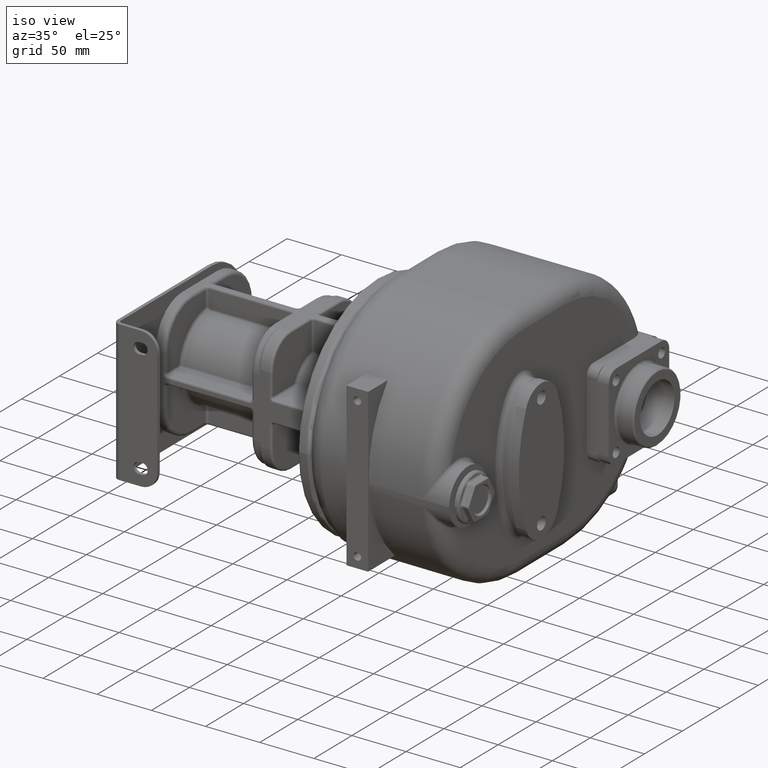
[diagram: clean part render]
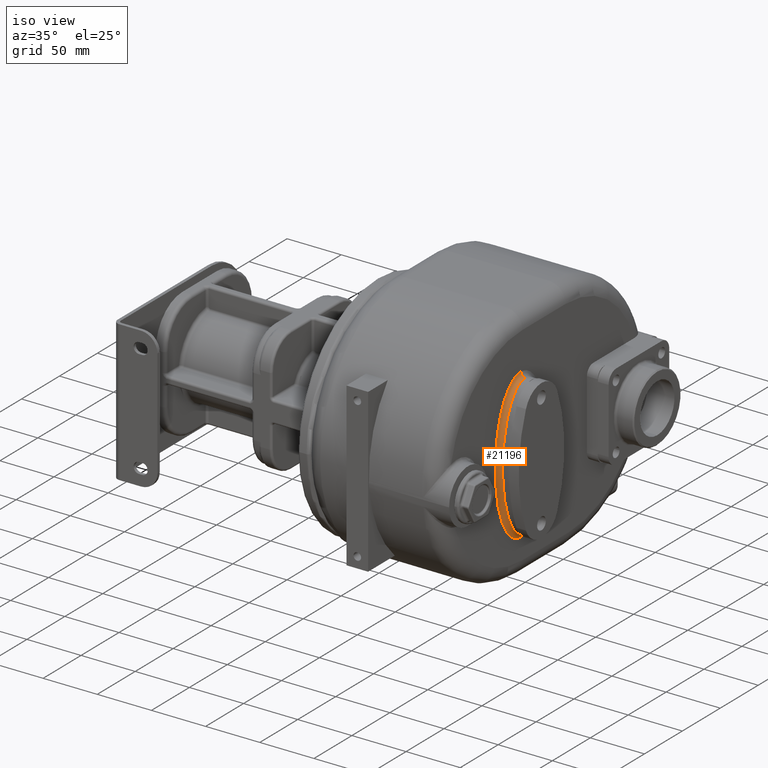
[diagram: same view with one face highlighted and labeled with its STEP entity id]
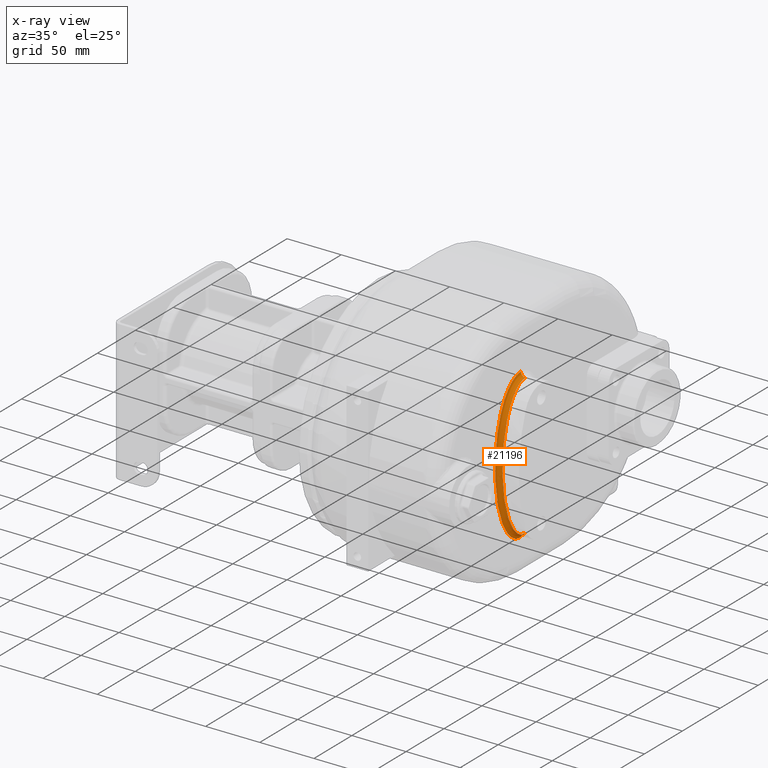
[diagram: x-ray of the same camera — body ghosted, the highlighted face saturated]
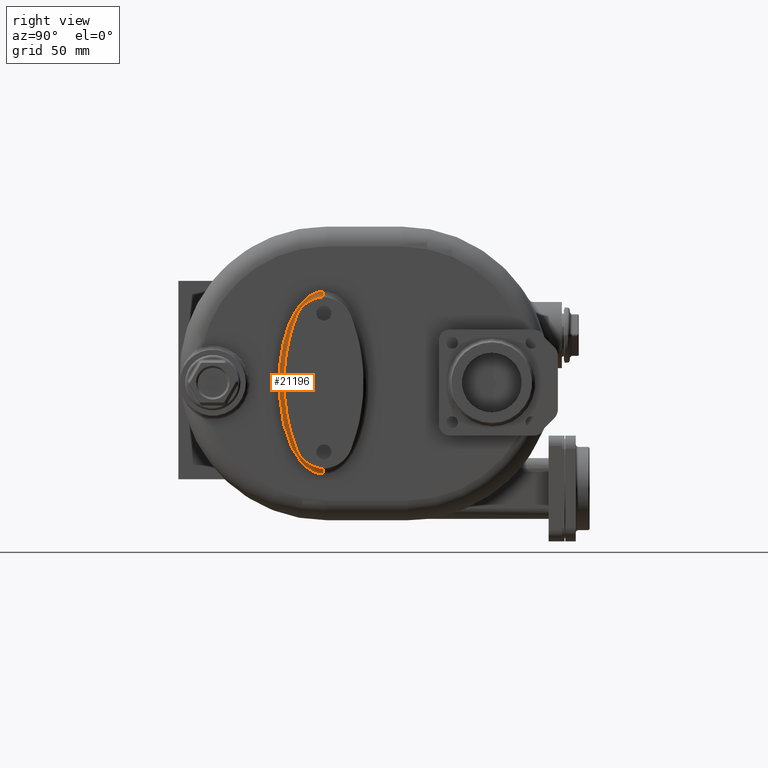
[diagram: same view with one face highlighted and labeled with its STEP entity id]
A machine part, iso view. The second image highlights one B-rep face of the part: STEP entity #21196.
The next image is the same camera in x-ray: the body ghosted, the highlighted face saturated — about 0% of this face is hidden behind the body in this view.
A second angle (right view) of the same face is appended — the face is thin or edge-on in the first view.
In plain terms, the highlighted face is a freeform B-spline surface patch.
Its self-contained STEP definition (entity closure, byte-faithful):
#1535=CARTESIAN_POINT('',(7.400000634498E1,1.099999999998E2,-7.599999999998E1));
#1645=CARTESIAN_POINT('',(7.400000634498E1,1.100000000002E2,6.199999999998E1));
#1647=CARTESIAN_POINT('',(7.400000634498E1,1.100000000002E2,6.199999999998E1));
#1648=CARTESIAN_POINT('',(7.400001016623E1,1.097864255186E2,6.199999317442E1));
#1649=CARTESIAN_POINT('',(7.399999528184E1,1.093582951461E2,6.199229907980E1));
#1650=CARTESIAN_POINT('',(7.400000126423E1,1.087129691518E2,6.195749155583E1));
#1651=CARTESIAN_POINT('',(7.399999966125E1,1.080650713003E2,6.189893652659E1));
#1652=CARTESIAN_POINT('',(7.400000009077E1,1.074149422378E2,6.181637691769E1));
#1653=CARTESIAN_POINT('',(7.399999997568E1,1.067629530415E2,6.170954380167E1));
#1654=CARTESIAN_POINT('',(7.400000000652E1,1.061096549127E2,6.157808600898E1));
#1655=CARTESIAN_POINT('',(7.399999999825E1,1.054550537673E2,6.142173653598E1));
#1656=CARTESIAN_POINT('',(7.400000000047E1,1.047982427450E2,6.123985690766E1));
#1657=CARTESIAN_POINT('',(7.399999999987E1,1.041385800657E2,6.103159298640E1));
#1658=CARTESIAN_POINT('',(7.400000000003E1,1.034755941347E2,6.079616920723E1));
#1659=CARTESIAN_POINT('',(7.399999999999E1,1.028091774695E2,6.053274117083E1));
#1660=CARTESIAN_POINT('',(7.4E1,1.021392803762E2,6.024040083799E1));
#1661=CARTESIAN_POINT('',(7.4E1,1.014653446813E2,5.991799145068E1));
#1662=CARTESIAN_POINT('',(7.4E1,1.007870304926E2,5.956421515867E1));
#1663=CARTESIAN_POINT('',(7.4E1,1.001039183801E2,5.917765712304E1));
#1664=CARTESIAN_POINT('',(7.4E1,9.941573877734E1,5.875679610768E1));
#1665=CARTESIAN_POINT('',(7.4E1,9.872230784045E1,5.830000907389E1));
#1666=CARTESIAN_POINT('',(7.4E1,9.802315782449E1,5.780534040832E1));
#1667=CARTESIAN_POINT('',(7.4E1,9.731816779279E1,5.727087796199E1));
#1668=CARTESIAN_POINT('',(7.4E1,9.660703207734E1,5.669433660117E1));
#1669=CARTESIAN_POINT('',(7.4E1,9.588957941500E1,5.607338677993E1));
#1670=CARTESIAN_POINT('',(7.4E1,9.516580997849E1,5.540558207864E1));
#1671=CARTESIAN_POINT('',(7.4E1,9.443551483985E1,5.468799005822E1));
#1672=CARTESIAN_POINT('',(7.4E1,9.369882861536E1,5.391792389553E1));
#1673=CARTESIAN_POINT('',(7.4E1,9.295583217136E1,5.309210027617E1));
#1674=CARTESIAN_POINT('',(7.4E1,9.220667555239E1,5.220720784048E1));
#1675=CARTESIAN_POINT('',(7.4E1,9.145179272807E1,5.125995393841E1));
#1676=CARTESIAN_POINT('',(7.4E1,9.069162995005E1,5.024646069120E1));
#1677=CARTESIAN_POINT('',(7.4E1,8.992683460381E1,4.916321637141E1));
#1678=CARTESIAN_POINT('',(7.4E1,8.915833834719E1,4.800622592836E1));
#1679=CARTESIAN_POINT('',(7.4E1,8.838715930190E1,4.677174800671E1));
#1680=CARTESIAN_POINT('',(7.4E1,8.761467028553E1,4.545578958768E1));
#1681=CARTESIAN_POINT('',(7.4E1,8.684233478774E1,4.405453730645E1));
#1682=CARTESIAN_POINT('',(7.4E1,8.607203293465E1,4.256417048403E1));
#1683=CARTESIAN_POINT('',(7.4E1,8.530579810112E1,4.098113656314E1));
#1684=CARTESIAN_POINT('',(7.4E1,8.454602327321E1,3.930204993034E1));
#1685=CARTESIAN_POINT('',(7.4E1,8.379538876064E1,3.752392194267E1));
#1686=CARTESIAN_POINT('',(7.4E1,8.305679161787E1,3.564416015036E1));
#1687=CARTESIAN_POINT('',(7.4E1,8.233357881726E1,3.366079853117E1));
#1688=CARTESIAN_POINT('',(7.4E1,8.162917730751E1,3.157246477210E1));
#1689=CARTESIAN_POINT('',(7.4E1,8.094745636475E1,2.937866750332E1));
#1690=CARTESIAN_POINT('',(7.4E1,8.029237572995E1,2.707977775896E1));
#1691=CARTESIAN_POINT('',(7.4E1,7.966808955932E1,2.467711111202E1));
#1692=CARTESIAN_POINT('',(7.4E1,7.907895352958E1,2.217326376818E1));
#1693=CARTESIAN_POINT('',(7.4E1,7.852917683277E1,1.957168466819E1));
#1694=CARTESIAN_POINT('',(7.4E1,7.802323708855E1,1.687757250381E1));
#1695=CARTESIAN_POINT('',(7.4E1,7.756514159790E1,1.409681585771E1));
#1696=CARTESIAN_POINT('',(7.4E1,7.715910088021E1,1.123725186405E1));
#1697=CARTESIAN_POINT('',(7.4E1,7.680858187887E1,8.307149175230E0));
#1698=CARTESIAN_POINT('',(7.4E1,7.651713210934E1,5.316734765686E0));
#1699=CARTESIAN_POINT('',(7.4E1,7.628736253242E1,2.276413983332E0));
#1700=CARTESIAN_POINT('',(7.4E1,7.612176113114E1,-8.018120072720E-1));
#1701=CARTESIAN_POINT('',(7.4E1,7.602187953829E1,-3.905760503602E0));
#1702=CARTESIAN_POINT('',(7.4E1,7.598878608137E1,-7.022581563332E0));
#1703=CARTESIAN_POINT('',(7.4E1,7.602287506757E1,-1.013907949007E1));
#1704=CARTESIAN_POINT('',(7.4E1,7.612362006246E1,-1.324226962183E1));
#1705=CARTESIAN_POINT('',(7.4E1,7.629020920675E1,-1.631942609593E1));
#1706=CARTESIAN_POINT('',(7.4E1,7.652065928252E1,-1.935793488995E1));
#1707=CARTESIAN_POINT('',(7.4E1,7.681291737587E1,-2.234663338004E1));
#1708=CARTESIAN_POINT('',(7.4E1,7.716393219935E1,-2.527430390097E1));
#1709=CARTESIAN_POINT('',(7.4E1,7.757051343036E1,-2.813160437940E1));
#1710=CARTESIAN_POINT('',(7.4E1,7.802886968283E1,-3.090954895437E1));
#1711=CARTESIAN_POINT('',(7.4E1,7.853506330688E1,-3.360101600633E1));
#1712=CARTESIAN_POINT('',(7.4E1,7.908483994672E1,-3.619962175430E1));
#1713=CARTESIAN_POINT('',(7.4E1,7.967397117081E1,-3.870074139662E1));
#1714=CARTESIAN_POINT('',(7.4E1,8.029802940824E1,-4.110051781887E1));
#1715=CARTESIAN_POINT('',(7.4E1,8.095286810144E1,-4.339674319626E1));
#1716=CARTESIAN_POINT('',(7.4E1,8.163418687627E1,-4.558789397878E1));
#1717=CARTESIAN_POINT('',(7.4E1,8.233816063839E1,-4.767379906058E1));
#1718=CARTESIAN_POINT('',(7.4E1,8.306089001904E1,-4.965493742292E1));
#1719=CARTESIAN_POINT('',(7.4E1,8.379897146508E1,-5.153269212327E1));
#1720=CARTESIAN_POINT('',(7.4E1,8.454910772015E1,-5.330906005177E1));
#1721=CARTESIAN_POINT('',(7.4E1,8.530834609415E1,-5.498656224660E1));
#1722=CARTESIAN_POINT('',(7.4E1,8.607405989573E1,-5.656819146798E1));
#1723=CARTESIAN_POINT('',(7.4E1,8.684381509967E1,-5.805728549558E1));
#1724=CARTESIAN_POINT('',(7.4E1,8.761558630909E1,-5.945738668377E1));
#1725=CARTESIAN_POINT('',(7.4E1,8.838749600166E1,-6.077227229393E1));
#1726=CARTESIAN_POINT('',(7.4E1,8.915806630326E1,-6.200579837115E1));
#1727=CARTESIAN_POINT('',(7.4E1,8.992592366835E1,-6.316185351256E1));
#1728=CARTESIAN_POINT('',(7.4E1,9.069006444616E1,-6.424430181801E1));
#1729=CARTESIAN_POINT('',(7.4E1,9.144953310861E1,-6.525701375160E1));
#1730=CARTESIAN_POINT('',(7.4E1,9.220378315875E1,-6.620365574523E1));
#1731=CARTESIAN_POINT('',(7.4E1,9.295228469129E1,-6.708803891076E1));
#1732=CARTESIAN_POINT('',(7.4E1,9.369468305279E1,-6.791342986184E1));
#1733=CARTESIAN_POINT('',(7.4E1,9.443093045238E1,-6.868333782490E1));
#1734=CARTESIAN_POINT('',(7.4E1,9.516078269635E1,-6.940078986789E1));
#1735=CARTESIAN_POINT('',(7.4E1,9.588427073376E1,-7.006862851303E1));
#1736=CARTESIAN_POINT('',(7.4E1,9.660150785275E1,-7.068970867633E1));
#1737=CARTESIAN_POINT('',(7.4E1,9.731247164803E1,-7.126640586485E1));
#1738=CARTESIAN_POINT('',(7.4E1,9.801746907277E1,-7.180117041657E1));
#1739=CARTESIAN_POINT('',(7.4E1,9.871659800113E1,-7.229611144136E1));
#1740=CARTESIAN_POINT('',(7.4E1,9.941010937740E1,-7.275321981832E1));
#1741=CARTESIAN_POINT('',(7.4E1,1.000983233653E2,-7.317436176240E1));
#1742=CARTESIAN_POINT('',(7.4E1,1.007814577828E2,-7.356119302175E1));
#1743=CARTESIAN_POINT('',(7.4E1,1.014599406067E2,-7.391528472895E1));
#1744=CARTESIAN_POINT('',(7.4E1,1.021339724198E2,-7.423798058331E1));
#1745=CARTESIAN_POINT('',(7.399999999999E1,1.028039396588E2,-7.453055630618E1));
#1746=CARTESIAN_POINT('',(7.400000000003E1,1.034702178295E2,-7.479415406132E1));
#1747=CARTESIAN_POINT('',(7.399999999990E1,1.041333130042E2,-7.502984478630E1));
#1748=CARTESIAN_POINT('',(7.400000000039E1,1.047934141829E2,-7.523840842812E1));
#1749=CARTESIAN_POINT('',(7.399999999854E1,1.054505451671E2,-7.542060472162E1));
#1750=CARTESIAN_POINT('',(7.400000000544E1,1.061051909928E2,-7.557710486507E1));
#1751=CARTESIAN_POINT('',(7.399999997968E1,1.067581404141E2,-7.570864197913E1));
#1752=CARTESIAN_POINT('',(7.400000007583E1,1.074102236830E2,-7.581572289521E1));
#1753=CARTESIAN_POINT('',(7.399999971702E1,1.080609829395E2,-7.589849447894E1));
#1754=CARTESIAN_POINT('',(7.400000105611E1,1.087099044876E2,-7.595728424412E1));
#1755=CARTESIAN_POINT('',(7.399999605855E1,1.093566074625E2,-7.599227653355E1));
#1756=CARTESIAN_POINT('',(7.400000849264E1,1.097858304664E2,-7.599999625812E1));
#1757=CARTESIAN_POINT('',(7.400000634498E1,1.099999999998E2,-7.599999999998E1));
#5335=CARTESIAN_POINT('',(7.8E1,1.099999997951E2,-7.599999017691E1));
#5336=DIRECTION('',(0.E0,1.E0,-9.184269956634E-8));
#5337=DIRECTION('',(-9.999999999970E-1,-2.238212250549E-13,-2.455771341421E-6));
#5338=AXIS2_PLACEMENT_3D('',#5335,#5336,#5337);
#5340=CARTESIAN_POINT('',(7.8E1,1.100000002049E2,6.199999017691E1));
#5341=DIRECTION('',(0.E0,-1.E0,9.184269966478E-8));
#5342=DIRECTION('',(-9.999999999970E-1,2.238212250549E-13,2.455771336092E-6));
#5343=AXIS2_PLACEMENT_3D('',#5340,#5341,#5342);
#5360=CARTESIAN_POINT('',(7.8E1,1.100000000001E2,5.799999736271E1));
#5361=CARTESIAN_POINT('',(7.8E1,1.080365045916E2,5.799999736271E1));
#5362=CARTESIAN_POINT('',(7.8E1,1.041095719083E2,5.716199481289E1));
#5363=CARTESIAN_POINT('',(7.8E1,9.844548347074E1,5.343928146810E1));
#5364=CARTESIAN_POINT('',(7.8E1,9.322547638304E1,4.739389699413E1));
#5365=CARTESIAN_POINT('',(7.8E1,8.864996905356E1,3.925827935338E1));
#5366=CARTESIAN_POINT('',(7.8E1,8.489542678913E1,2.934463025511E1));
#5367=CARTESIAN_POINT('',(7.8E1,8.117324917091E1,1.426591058671E1));
#5368=CARTESIAN_POINT('',(7.8E1,7.921783388606E1,-7.E0));
#5369=CARTESIAN_POINT('',(7.8E1,8.117324917091E1,-2.826591058671E1));
#5370=CARTESIAN_POINT('',(7.8E1,8.489542678913E1,-4.334463025511E1));
#5371=CARTESIAN_POINT('',(7.8E1,8.864996905356E1,-5.325827935338E1));
#5372=CARTESIAN_POINT('',(7.8E1,9.322547638305E1,-6.139389699413E1));
#5373=CARTESIAN_POINT('',(7.8E1,9.844548347072E1,-6.743928146810E1));
#5374=CARTESIAN_POINT('',(7.8E1,1.041095719083E2,-7.116199481289E1));
#5375=CARTESIAN_POINT('',(7.8E1,1.080365045914E2,-7.199999736271E1));
#5376=CARTESIAN_POINT('',(7.8E1,1.099999999999E2,-7.199999736271E1));
#5500=CARTESIAN_POINT('',(7.8E1,1.099999999999E2,-7.199999736271E1));
#5516=CARTESIAN_POINT('',(7.8E1,1.100000000001E2,5.799999736271E1));
#11748=VERTEX_POINT('',#1535);
#11749=VERTEX_POINT('',#1645);
#11750=VERTEX_POINT('',#5500);
#11751=VERTEX_POINT('',#5516);
#20968=CARTESIAN_POINT('',(7.402921680581E1,1.117116894946E2,6.239797732800E1));
#20969=CARTESIAN_POINT('',(7.402874559842E1,1.112674279571E2,6.244000683022E1));
#20970=CARTESIAN_POINT('',(7.402870252229E1,1.102047861318E2,6.250075716760E1));
#20971=CARTESIAN_POINT('',(7.402872489780E1,1.084879344691E2,6.244893069028E1));
#20972=CARTESIAN_POINT('',(7.402871794115E1,1.065751995482E2,6.219196792783E1));
#20973=CARTESIAN_POINT('',(7.402871985997E1,1.046797080943E2,6.173288819316E1));
#20974=CARTESIAN_POINT('',(7.402871936199E1,1.028841411942E2,6.110523670070E1));
#20975=CARTESIAN_POINT('',(7.402871948975E1,1.011594094937E2,6.032433337434E1));
#20976=CARTESIAN_POINT('',(7.402871945254E1,9.944023648898E1,5.936479258753E1));
#20977=CARTESIAN_POINT('',(7.402871946400E1,9.766483737931E1,5.816816872360E1));
#20978=CARTESIAN_POINT('',(7.402871946046E1,9.583179477370E1,5.669812240350E1));
#20979=CARTESIAN_POINT('',(7.402871946158E1,9.394551186359E1,5.491564033986E1));
#20980=CARTESIAN_POINT('',(7.402871946123E1,9.205839237511E1,5.282538721953E1));
#20981=CARTESIAN_POINT('',(7.402871946133E1,9.026157944257E1,5.051224620530E1));
#20982=CARTESIAN_POINT('',(7.402871946130E1,8.862026906040E1,4.809096089587E1));
#20983=CARTESIAN_POINT('',(7.402871946131E1,8.713583752407E1,4.561477279027E1));
#20984=CARTESIAN_POINT('',(7.402871946131E1,8.576424351039E1,4.304918180600E1));
#20985=CARTESIAN_POINT('',(7.402871946131E1,8.445999829586E1,4.032138575240E1));
#20986=CARTESIAN_POINT('',(7.402871946131E1,8.318752939282E1,3.733819317106E1));
#20987=CARTESIAN_POINT('',(7.402871946131E1,8.193168720562E1,3.401262398380E1));
#20988=CARTESIAN_POINT('',(7.402871946131E1,8.070152594232E1,3.028725833838E1));
#20989=CARTESIAN_POINT('',(7.402871946131E1,7.952324832097E1,2.613841423426E1));
#20990=CARTESIAN_POINT('',(7.402871946131E1,7.842796642450E1,2.155504524110E1));
#20991=CARTESIAN_POINT('',(7.402871946131E1,7.744140399518E1,1.649015611293E1));
#20992=CARTESIAN_POINT('',(7.402871946131E1,7.659306902048E1,1.085517722297E1));
#20993=CARTESIAN_POINT('',(7.402871946131E1,7.593495836480E1,4.589960330690E0));
#20994=CARTESIAN_POINT('',(7.402871946131E1,7.554132718309E1,
-2.242537400249E0));
#20995=CARTESIAN_POINT('',(7.402871946131E1,7.548056721846E1,
-9.418938373287E0));
#20996=CARTESIAN_POINT('',(7.402871946131E1,7.577911013177E1,
-1.656872342550E1));
#20997=CARTESIAN_POINT('',(7.402871946131E1,7.639727156570E1,
-2.329976946625E1));
#20998=CARTESIAN_POINT('',(7.402871946131E1,7.724870996983E1,
-2.937028687026E1));
#20999=CARTESIAN_POINT('',(7.402871946131E1,7.825378879139E1,
-3.475155815705E1));
#21000=CARTESIAN_POINT('',(7.402871946131E1,7.936774401737E1,
-3.954307384511E1));
#21001=CARTESIAN_POINT('',(7.402871946131E1,8.055943905738E1,
-4.382341276972E1));
#21002=CARTESIAN_POINT('',(7.402871946131E1,8.179876647457E1,
-4.763579909626E1));
#21003=CARTESIAN_POINT('',(7.402871946131E1,8.306108163376E1,
-5.102260401599E1));
#21004=CARTESIAN_POINT('',(7.402871946131E1,8.433761836749E1,
-5.404965563919E1));
#21005=CARTESIAN_POINT('',(7.402871946131E1,8.564103601903E1,
-5.680436898139E1));
#21006=CARTESIAN_POINT('',(7.402871946131E1,8.700444004517E1,
-5.938101983801E1));
#21007=CARTESIAN_POINT('',(7.402871946131E1,8.847272729387E1,
-6.185729347765E1));
#21008=CARTESIAN_POINT('',(7.402871946130E1,9.009353417935E1,
-6.427820413151E1));
#21009=CARTESIAN_POINT('',(7.402871946132E1,9.187512681851E1,
-6.660454178114E1));
#21010=CARTESIAN_POINT('',(7.402871946125E1,9.375496928720E1,
-6.871904474493E1));
#21011=CARTESIAN_POINT('',(7.402871946148E1,9.563079625795E1,
-7.052051845642E1));
#21012=CARTESIAN_POINT('',(7.402871946078E1,9.743012563570E1,
-7.199112049578E1));
#21013=CARTESIAN_POINT('',(7.402871946298E1,9.914162854818E1,
-7.317511432233E1));
#21014=CARTESIAN_POINT('',(7.402871945603E1,1.007621665663E2,
-7.411494914014E1));
#21015=CARTESIAN_POINT('',(7.402871947844E1,1.023171680971E2,
-7.486207205474E1));
#21016=CARTESIAN_POINT('',(7.402871939802E1,1.038766882261E2,
-7.546807735793E1));
#21017=CARTESIAN_POINT('',(7.402871971089E1,1.055002219307E2,
-7.594900105054E1));
#21018=CARTESIAN_POINT('',(7.402871853228E1,1.071842735207E2,
-7.628822620937E1));
#21019=CARTESIAN_POINT('',(7.402872280143E1,1.088685623805E2,
-7.646897498489E1));
#21020=CARTESIAN_POINT('',(7.402870889748E1,1.103791473566E2,
-7.649285364214E1));
#21021=CARTESIAN_POINT('',(7.402873565487E1,1.113183526578E2,
-7.643521011687E1));
#21022=CARTESIAN_POINT('',(7.402902304247E1,1.117099221451E2,
-7.639832803188E1));
#21023=CARTESIAN_POINT('',(7.369244942371E1,1.114512454911E2,5.961478824252E1));
#21024=CARTESIAN_POINT('',(7.369193825260E1,1.110742247611E2,5.965036024937E1));
#21025=CARTESIAN_POINT('',(7.369189152312E1,1.101734160906E2,5.970182390296E1));
#21026=CARTESIAN_POINT('',(7.369191579633E1,1.087188642808E2,5.965795091805E1));
#21027=CARTESIAN_POINT('',(7.369190824967E1,1.070939823024E2,5.943985217083E1));
#21028=CARTESIAN_POINT('',(7.369191033123E1,1.054738444143E2,5.904779858760E1));
#21029=CARTESIAN_POINT('',(7.369190979101E1,1.039256752297E2,5.850701755781E1));
#21030=CARTESIAN_POINT('',(7.369190992962E1,1.024237291414E2,5.782736815663E1));
#21031=CARTESIAN_POINT('',(7.369190988925E1,1.009102870805E2,5.698312903112E1));
#21032=CARTESIAN_POINT('',(7.369190990168E1,9.932850798304E1,5.591759974439E1));
#21033=CARTESIAN_POINT('',(7.369190989784E1,9.767480259184E1,5.459207133109E1));
#21034=CARTESIAN_POINT('',(7.369190989905E1,9.595162440579E1,5.296452673955E1));
#21035=CARTESIAN_POINT('',(7.369190989867E1,9.420672577164E1,5.103268642421E1));
#21036=CARTESIAN_POINT('',(7.369190989878E1,9.252736790187E1,4.887152494663E1));
#21037=CARTESIAN_POINT('',(7.369190989875E1,9.097981288693E1,4.658912367636E1));
#21038=CARTESIAN_POINT('',(7.369190989876E1,8.957034409901E1,4.423841467699E1));
#21039=CARTESIAN_POINT('',(7.369190989876E1,8.826059539362E1,4.178885952178E1));
#21040=CARTESIAN_POINT('',(7.369190989876E1,8.700921179309E1,3.917194383025E1));
#21041=CARTESIAN_POINT('',(7.369190989876E1,8.578327291142E1,3.629816041690E1));
#21042=CARTESIAN_POINT('',(7.369190989876E1,8.456893801557E1,3.308285570068E1));
#21043=CARTESIAN_POINT('',(7.369190989876E1,8.337559341043E1,2.946937068357E1));
#21044=CARTESIAN_POINT('',(7.369190989876E1,8.222937077229E1,2.543381546252E1));
#21045=CARTESIAN_POINT('',(7.369190989876E1,8.116135131967E1,2.096498096359E1));
#21046=CARTESIAN_POINT('',(7.369190989876E1,8.019745170684E1,1.601693325910E1));
#21047=CARTESIAN_POINT('',(7.369190989876E1,7.936728320775E1,1.050319696486E1));
#21048=CARTESIAN_POINT('',(7.369190989876E1,7.872247180460E1,4.365289646754E0));
#21049=CARTESIAN_POINT('',(7.369190989876E1,7.833647603695E1,
-2.333836366293E0));
#21050=CARTESIAN_POINT('',(7.369190989876E1,7.827687326194E1,
-9.372587498122E0));
#21051=CARTESIAN_POINT('',(7.369190989876E1,7.856967850952E1,
-1.638401109753E1));
#21052=CARTESIAN_POINT('',(7.369190989876E1,7.917552816425E1,
-2.298013497343E1));
#21053=CARTESIAN_POINT('',(7.369190989876E1,8.000901025926E1,
-2.892193198140E1));
#21054=CARTESIAN_POINT('',(7.369190989876E1,8.099132465353E1,
-3.418074840510E1));
#21055=CARTESIAN_POINT('',(7.369190989876E1,8.207790057349E1,
-3.885399841884E1));
#21056=CARTESIAN_POINT('',(7.369190989876E1,8.323754636202E1,
-4.301877605647E1));
#21057=CARTESIAN_POINT('',(7.369190989876E1,8.444018115132E1,
-4.671788763783E1));
#21058=CARTESIAN_POINT('',(7.369190989876E1,8.566120367417E1,
-4.999354386264E1));
#21059=CARTESIAN_POINT('',(7.369190989876E1,8.689152185517E1,
-5.291066752712E1));
#21060=CARTESIAN_POINT('',(7.369190989876E1,8.814262294190E1,
-5.555448900029E1));
#21061=CARTESIAN_POINT('',(7.369190989876E1,8.944516376780E1,
-5.801576821687E1));
#21062=CARTESIAN_POINT('',(7.369190989876E1,9.084011011552E1,
-6.036793222135E1));
#21063=CARTESIAN_POINT('',(7.369190989875E1,9.236947475878E1,
-6.265170819131E1));
#21064=CARTESIAN_POINT('',(7.369190989877E1,9.403620886106E1,
-6.482731715316E1));
#21065=CARTESIAN_POINT('',(7.369190989870E1,9.577636638642E1,
-6.678381508057E1));
#21066=CARTESIAN_POINT('',(7.369190989894E1,9.749212047596E1,
-6.843075398952E1));
#21067=CARTESIAN_POINT('',(7.369190989819E1,9.911771108877E1,
-6.975869760849E1));
#21068=CARTESIAN_POINT('',(7.369190990057E1,1.006452967360E2,
-7.081492408716E1));
#21069=CARTESIAN_POINT('',(7.369190989303E1,1.020751561467E2,
-7.164376192825E1));
#21070=CARTESIAN_POINT('',(7.369190991735E1,1.034331246753E2,
-7.229591543913E1));
#21071=CARTESIAN_POINT('',(7.369190983010E1,1.047827098130E2,
-7.282008210212E1));
#21072=CARTESIAN_POINT('',(7.369191016951E1,1.061762160498E2,
-7.323261456585E1));
#21073=CARTESIAN_POINT('',(7.369190889094E1,1.076119100641E2,
-7.352161679074E1));
#21074=CARTESIAN_POINT('',(7.369191352216E1,1.090413945039E2,
-7.367491700495E1));
#21075=CARTESIAN_POINT('',(7.369189843900E1,1.103211691609E2,
-7.369513427430E1));
#21076=CARTESIAN_POINT('',(7.369192746572E1,1.111174422396E2,
-7.364628747233E1));
#21077=CARTESIAN_POINT('',(7.369223922704E1,1.114497458486E2,
-7.361504619699E1));
#21078=CARTESIAN_POINT('',(7.568322472472E1,1.112657517042E2,5.763254147937E1));
#21079=CARTESIAN_POINT('',(7.568294979618E1,1.109366213148E2,5.766351431997E1));
#21080=CARTESIAN_POINT('',(7.568292466318E1,1.101510736767E2,5.770836379885E1));
#21081=CARTESIAN_POINT('',(7.568293771829E1,1.088833374293E2,5.767015546126E1));
#21082=CARTESIAN_POINT('',(7.568293365940E1,1.074634704701E2,5.747973649648E1));
#21083=CARTESIAN_POINT('',(7.568293477894E1,1.060394452777E2,5.713542037112E1));
#21084=CARTESIAN_POINT('',(7.568293448839E1,1.046674780347E2,5.665651034188E1));
#21085=CARTESIAN_POINT('',(7.568293456294E1,1.033242046220E2,5.604897615074E1));
#21086=CARTESIAN_POINT('',(7.568293454122E1,1.019572885372E2,5.528685733323E1));
#21087=CARTESIAN_POINT('',(7.568293454791E1,1.005134097515E2,5.431469640679E1));
#21088=CARTESIAN_POINT('',(7.568293454585E1,9.898743215805E1,5.309209673607E1));
#21089=CARTESIAN_POINT('',(7.568293454650E1,9.738042064319E1,5.157490192429E1));
#21090=CARTESIAN_POINT('',(7.568293454629E1,9.573681474176E1,4.975588659507E1));
#21091=CARTESIAN_POINT('',(7.568293454635E1,9.414111087853E1,4.770296819237E1));
#21092=CARTESIAN_POINT('',(7.568293454634E1,9.266033044036E1,4.551948310371E1));
#21093=CARTESIAN_POINT('',(7.568293454634E1,9.130425172435E1,4.325814300618E1));
#21094=CARTESIAN_POINT('',(7.568293454634E1,9.003855056959E1,4.089123104894E1));
#21095=CARTESIAN_POINT('',(7.568293454634E1,8.882481614057E1,3.835328672157E1));
#21096=CARTESIAN_POINT('',(7.568293454634E1,8.763201693479E1,3.555742685652E1));
#21097=CARTESIAN_POINT('',(7.568293454634E1,8.644724441916E1,3.242065485371E1));
#21098=CARTESIAN_POINT('',(7.568293454634E1,8.528012142498E1,2.888685361177E1));
#21099=CARTESIAN_POINT('',(7.568293454634E1,8.415672903113E1,2.493198515502E1));
#21100=CARTESIAN_POINT('',(7.568293454634E1,8.310812647382E1,2.054472457129E1));
#21101=CARTESIAN_POINT('',(7.568293454634E1,8.216036780335E1,1.567989382648E1));
#21102=CARTESIAN_POINT('',(7.568293454634E1,8.134313785655E1,1.025250910072E1));
#21103=CARTESIAN_POINT('',(7.568293454634E1,8.070779846534E1,4.205274382851E0));
#21104=CARTESIAN_POINT('',(7.568293454634E1,8.032724080280E1,
-2.398861441616E0));
#21105=CARTESIAN_POINT('',(7.568293454634E1,8.026846220298E1,
-9.339575413983E0));
#21106=CARTESIAN_POINT('',(7.568293454634E1,8.055718096237E1,
-1.625245502894E1));
#21107=CARTESIAN_POINT('',(7.568293454634E1,8.115426190477E1,
-2.275248445478E1));
#21108=CARTESIAN_POINT('',(7.568293454634E1,8.197495513256E1,
-2.860260404502E1));
#21109=CARTESIAN_POINT('',(7.568293454634E1,8.294105621509E1,
-3.377420549752E1));
#21110=CARTESIAN_POINT('',(7.568293454634E1,8.400813200801E1,
-3.836322416983E1));
#21111=CARTESIAN_POINT('',(7.568293454634E1,8.514495163452E1,
-4.244569658850E1));
#21112=CARTESIAN_POINT('',(7.568293454634E1,8.632145314985E1,
-4.606413147486E1));
#21113=CARTESIAN_POINT('',(7.568293454634E1,8.751306617439E1,
-4.926062522312E1));
#21114=CARTESIAN_POINT('',(7.568293454634E1,8.871046651411E1,
-5.209945584546E1));
#21115=CARTESIAN_POINT('',(7.568293454634E1,8.992430662501E1,
-5.466429775896E1));
#21116=CARTESIAN_POINT('',(7.568293454634E1,9.118349937862E1,
-5.704340682719E1));
#21117=CARTESIAN_POINT('',(7.568293454634E1,9.252621076884E1,
-5.930717729641E1));
#21118=CARTESIAN_POINT('',(7.568293454634E1,9.399044829243E1,
-6.149328301296E1));
#21119=CARTESIAN_POINT('',(7.568293454635E1,9.557537768940E1,
-6.356153978123E1));
#21120=CARTESIAN_POINT('',(7.568293454631E1,9.721604861207E1,
-6.540550314404E1));
#21121=CARTESIAN_POINT('',(7.568293454644E1,9.881779537372E1,
-6.694237906312E1));
#21122=CARTESIAN_POINT('',(7.568293454603E1,1.003196455241E2,
-6.816871830547E1));
#21123=CARTESIAN_POINT('',(7.568293454731E1,1.017162413634E2,
-6.913394614768E1));
#21124=CARTESIAN_POINT('',(7.568293454326E1,1.030102953938E2,
-6.988372956916E1));
#21125=CARTESIAN_POINT('',(7.568293455634E1,1.042279328061E2,
-7.046824384055E1));
#21126=CARTESIAN_POINT('',(7.568293450942E1,1.054279977554E2,
-7.093412327451E1));
#21127=CARTESIAN_POINT('',(7.568293469196E1,1.066576735121E2,
-7.129794604302E1));
#21128=CARTESIAN_POINT('',(7.568293400429E1,1.079164819520E2,
-7.155117842074E1));
#21129=CARTESIAN_POINT('',(7.568293649515E1,1.091644892368E2,
-7.168492918281E1));
#21130=CARTESIAN_POINT('',(7.568292838282E1,1.102798758504E2,
-7.170253873344E1));
#21131=CARTESIAN_POINT('',(7.568294399456E1,1.109743495449E2,
-7.165995714584E1));
#21132=CARTESIAN_POINT('',(7.568311167244E1,1.112644427284E2,
-7.163273337573E1));
#21133=CARTESIAN_POINT('',(7.847839671813E1,1.112971297852E2,5.796785782864E1));
#21134=CARTESIAN_POINT('',(7.847845348881E1,1.109598982782E2,5.799960866302E1));
#21135=CARTESIAN_POINT('',(7.847845867859E1,1.101548531137E2,5.804557699397E1));
#21136=CARTESIAN_POINT('',(7.847845598281E1,1.088555151941E2,5.800641042611E1));
#21137=CARTESIAN_POINT('',(7.847845682094E1,1.074009679473E2,5.781130915650E1));
#21138=CARTESIAN_POINT('',(7.847845658976E1,1.059437683821E2,5.745891777513E1));
#21139=CARTESIAN_POINT('',(7.847845664976E1,1.045419948642E2,5.696954166345E1));
#21140=CARTESIAN_POINT('',(7.847845663436E1,1.031718804228E2,5.634980848205E1));
#21141=CARTESIAN_POINT('',(7.847845663885E1,1.017801780418E2,5.557379821450E1));
#21142=CARTESIAN_POINT('',(7.847845663747E1,1.003129720751E2,5.458584312041E1));
#21143=CARTESIAN_POINT('',(7.847845663789E1,9.876538808045E1,5.334583205024E1));
#21144=CARTESIAN_POINT('',(7.847845663776E1,9.713872584157E1,5.180997049828E1));
#21145=CARTESIAN_POINT('',(7.847845663780E1,9.547798528770E1,4.997186972362E1));
#21146=CARTESIAN_POINT('',(7.847845663779E1,9.386813053438E1,4.790064095039E1));
#21147=CARTESIAN_POINT('',(7.847845663779E1,9.237605452609E1,4.570042322606E1));
#21148=CARTESIAN_POINT('',(7.847845663779E1,9.101094435933E1,4.342396550823E1));
#21149=CARTESIAN_POINT('',(7.847845663779E1,8.973779213231E1,4.104307364902E1));
#21150=CARTESIAN_POINT('',(7.847845663779E1,8.851768897919E1,3.849177054613E1));
#21151=CARTESIAN_POINT('',(7.847845663779E1,8.731928387442E1,3.568272915383E1));
#21152=CARTESIAN_POINT('',(7.847845663779E1,8.612951059420E1,3.253267257755E1));
#21153=CARTESIAN_POINT('',(7.847845663779E1,8.495795195910E1,2.898539204882E1));
#21154=CARTESIAN_POINT('',(7.847845663779E1,8.383069760704E1,2.501687463991E1));
#21155=CARTESIAN_POINT('',(7.847845663779E1,8.277881049274E1,2.061581503381E1));
#21156=CARTESIAN_POINT('',(7.847845663779E1,8.182832142464E1,1.573690732965E1));
#21157=CARTESIAN_POINT('',(7.847845663779E1,8.100890279568E1,1.029491539492E1));
#21158=CARTESIAN_POINT('',(7.847845663779E1,8.037196112139E1,4.232342523466E0));
#21159=CARTESIAN_POINT('',(7.847845663779E1,7.999048355040E1,
-2.387861816708E0));
#21160=CARTESIAN_POINT('',(7.847845663779E1,7.993156553331E1,
-9.345159729589E0));
#21161=CARTESIAN_POINT('',(7.847845663779E1,8.022097556199E1,
-1.627470901945E1));
#21162=CARTESIAN_POINT('',(7.847845663779E1,8.081953981749E1,
-2.279099375758E1));
#21163=CARTESIAN_POINT('',(7.847845663779E1,8.164239640676E1,
-2.865662147607E1));
#21164=CARTESIAN_POINT('',(7.847845663779E1,8.261124012890E1,
-3.384297619052E1));
#21165=CARTESIAN_POINT('',(7.847845663779E1,8.368161455826E1,
-3.844624341474E1));
#21166=CARTESIAN_POINT('',(7.847845663779E1,8.482229545243E1,
-4.254263856293E1));
#21167=CARTESIAN_POINT('',(7.847845663779E1,8.600321766562E1,
-4.617472069814E1));
#21168=CARTESIAN_POINT('',(7.847845663779E1,8.719980559328E1,
-4.938460555043E1));
#21169=CARTESIAN_POINT('',(7.847845663779E1,8.840277430651E1,
-5.223668020352E1));
#21170=CARTESIAN_POINT('',(7.847845663779E1,8.962291747444E1,
-5.481488227888E1));
#21171=CARTESIAN_POINT('',(7.847845663779E1,9.088944297673E1,
-5.720789122813E1));
#21172=CARTESIAN_POINT('',(7.847845663779E1,9.224099041884E1,
-5.948661432490E1));
#21173=CARTESIAN_POINT('',(7.847845663779E1,9.371624482913E1,
-6.168924191623E1));
#21174=CARTESIAN_POINT('',(7.847845663779E1,9.531501228887E1,
-6.377565835377E1));
#21175=CARTESIAN_POINT('',(7.847845663780E1,9.697251233949E1,
-6.563865803439E1));
#21176=CARTESIAN_POINT('',(7.847845663777E1,9.859354455122E1,
-6.719415218035E1));
#21177=CARTESIAN_POINT('',(7.847845663785E1,1.001163266062E2,
-6.843767879274E1));
#21178=CARTESIAN_POINT('',(7.847845663759E1,1.015350806474E2,
-6.941829994074E1));
#21179=CARTESIAN_POINT('',(7.847845663843E1,1.028521074809E2,
-7.018145618737E1));
#21180=CARTESIAN_POINT('',(7.847845663573E1,1.040934832685E2,
-7.077741229500E1));
#21181=CARTESIAN_POINT('',(7.847845664542E1,1.053188410141E2,
-7.125315158153E1));
#21182=CARTESIAN_POINT('',(7.847845660772E1,1.065762302924E2,
-7.162521406948E1));
#21183=CARTESIAN_POINT('',(7.847845674972E1,1.078649606503E2,
-7.188449726529E1));
#21184=CARTESIAN_POINT('',(7.847845623537E1,1.091436665637E2,
-7.202155500761E1));
#21185=CARTESIAN_POINT('',(7.847845791051E1,1.102868610161E2,
-7.203960567927E1));
#21186=CARTESIAN_POINT('',(7.847845468680E1,1.109985550681E2,
-7.199596426963E1));
#21187=CARTESIAN_POINT('',(7.847842006258E1,1.112957885563E2,
-7.196806089937E1));
#21188=(BOUNDED_SURFACE()B_SPLINE_SURFACE(3,3,((#20968,#20969,#20970,#20971,
#20972,#20973,#20974,#20975,#20976,#20977,#20978,#20979,#20980,#20981,#20982,
#20983,#20984,#20985,#20986,#20987,#20988,#20989,#20990,#20991,#20992,#20993,
#20994,#20995,#20996,#20997,#20998,#20999,#21000,#21001,#21002,#21003,#21004,
#21005,#21006,#21007,#21008,#21009,#21010,#21011,#21012,#21013,#21014,#21015,
#21016,#21017,#21018,#21019,#21020,#21021,#21022),(#21023,#21024,#21025,#21026,
#21027,#21028,#21029,#21030,#21031,#21032,#21033,#21034,#21035,#21036,#21037,
#21038,#21039,#21040,#21041,#21042,#21043,#21044,#21045,#21046,#21047,#21048,
#21049,#21050,#21051,#21052,#21053,#21054,#21055,#21056,#21057,#21058,#21059,
#21060,#21061,#21062,#21063,#21064,#21065,#21066,#21067,#21068,#21069,#21070,
#21071,#21072,#21073,#21074,#21075,#21076,#21077),(#21078,#21079,#21080,#21081,
#21082,#21083,#21084,#21085,#21086,#21087,#21088,#21089,#21090,#21091,#21092,
#21093,#21094,#21095,#21096,#21097,#21098,#21099,#21100,#21101,#21102,#21103,
#21104,#21105,#21106,#21107,#21108,#21109,#21110,#21111,#21112,#21113,#21114,
#21115,#21116,#21117,#21118,#21119,#21120,#21121,#21122,#21123,#21124,#21125,
#21126,#21127,#21128,#21129,#21130,#21131,#21132),(#21133,#21134,#21135,#21136,
#21137,#21138,#21139,#21140,#21141,#21142,#21143,#21144,#21145,#21146,#21147,
#21148,#21149,#21150,#21151,#21152,#21153,#21154,#21155,#21156,#21157,#21158,
#21159,#21160,#21161,#21162,#21163,#21164,#21165,#21166,#21167,#21168,#21169,
#21170,#21171,#21172,#21173,#21174,#21175,#21176,#21177,#21178,#21179,#21180,
#21181,#21182,#21183,#21184,#21185,#21186,#21187)),.UNSPECIFIED.,.F.,.F.,.F.)B_SPLINE_SURFACE_WITH_KNOTS((4,4),(4,1,1,1,1,1,1,1,1,1,1,1,1,1,1,1,1,1,1,1,1,1,1,1,
1,1,1,1,1,1,1,1,1,1,1,1,1,1,1,1,1,1,1,1,1,1,1,1,1,1,1,1,4),(0.E0,1.E0),(
-7.430035274915E-3,0.E0,1.025822584249E-2,2.106296540613E-2,3.206406309956E-2,
4.276660259663E-2,5.292646934880E-2,6.396297301822E-2,7.613646762720E-2,
8.945935346352E-2,1.043459050665E-1,1.210655600102E-1,1.385618737989E-1,
1.557576981766E-1,1.726961426914E-1,1.897464448068E-1,2.075208519788E-1,
2.266552274094E-1,2.477755757011E-1,2.712690962719E-1,2.971523229643E-1,
3.254118542569E-1,3.562240632048E-1,3.902928900615E-1,4.283720968521E-1,
4.701308582069E-1,5.140977262311E-1,5.582228608501E-1,5.995922474352E-1,
6.363314463422E-1,6.689965054218E-1,6.984223272268E-1,7.250321025520E-1,
7.489919548483E-1,7.704711939764E-1,7.898632085416E-1,8.077854945473E-1,
8.248715715544E-1,8.417470607386E-1,8.588436620049E-1,8.763191119835E-1,
8.932104439570E-1,9.082103301116E-1,9.213770643961E-1,9.331839716023E-1,
9.437613005601E-1,9.531734669242E-1,9.623014680123E-1,9.718583446591E-1,
9.814758966142E-1,9.909073661443E-1,1.E0,1.006547352366E0),.UNSPECIFIED.)GEOMETRIC_REPRESENTATION_ITEM()RATIONAL_B_SPLINE_SURFACE(((1.236514997430E0,
1.236514997430E0,1.236514997430E0,1.236514997430E0,1.236514997430E0,
1.236514997430E0,1.236514997430E0,1.236514997430E0,1.236514997430E0,
1.236514997430E0,1.236514997430E0,1.236514997430E0,1.236514997430E0,
1.236514997430E0,1.236514997430E0,1.236514997430E0,1.236514997430E0,
1.236514997430E0,1.236514997430E0,1.236514997430E0,1.236514997430E0,
1.236514997430E0,1.236514997430E0,1.236514997430E0,1.236514997430E0,
1.236514997430E0,1.236514997430E0,1.236514997430E0,1.236514997430E0,
1.236514997430E0,1.236514997430E0,1.236514997430E0,1.236514997430E0,
1.236514997430E0,1.236514997430E0,1.236514997430E0,1.236514997430E0,
1.236514997430E0,1.236514997430E0,1.236514997430E0,1.236514997430E0,
1.236514997430E0,1.236514997430E0,1.236514997430E0,1.236514997430E0,
1.236514997430E0,1.236514997430E0,1.236514997430E0,1.236514997430E0,
1.236514997430E0,1.236514997430E0,1.236514997430E0,1.236514997430E0,
1.236514997430E0,1.236514997430E0),(9.211616675233E-1,9.211616675233E-1,
9.211616675233E-1,9.211616675233E-1,9.211616675233E-1,9.211616675233E-1,
9.211616675233E-1,9.211616675233E-1,9.211616675233E-1,9.211616675233E-1,
9.211616675233E-1,9.211616675233E-1,9.211616675233E-1,9.211616675233E-1,
9.211616675233E-1,9.211616675233E-1,9.211616675233E-1,9.211616675233E-1,
9.211616675233E-1,9.211616675233E-1,9.211616675233E-1,9.211616675233E-1,
9.211616675233E-1,9.211616675233E-1,9.211616675233E-1,9.211616675233E-1,
9.211616675233E-1,9.211616675233E-1,9.211616675233E-1,9.211616675233E-1,
9.211616675233E-1,9.211616675233E-1,9.211616675233E-1,9.211616675233E-1,
9.211616675233E-1,9.211616675233E-1,9.211616675233E-1,9.211616675233E-1,
9.211616675233E-1,9.211616675233E-1,9.211616675233E-1,9.211616675233E-1,
9.211616675233E-1,9.211616675233E-1,9.211616675233E-1,9.211616675233E-1,
9.211616675233E-1,9.211616675233E-1,9.211616675233E-1,9.211616675233E-1,
9.211616675233E-1,9.211616675233E-1,9.211616675233E-1,9.211616675233E-1,
9.211616675233E-1),(9.211616675233E-1,9.211616675233E-1,9.211616675233E-1,
9.211616675233E-1,9.211616675233E-1,9.211616675233E-1,9.211616675233E-1,
9.211616675233E-1,9.211616675233E-1,9.211616675233E-1,9.211616675233E-1,
9.211616675233E-1,9.211616675233E-1,9.211616675233E-1,9.211616675233E-1,
9.211616675233E-1,9.211616675233E-1,9.211616675233E-1,9.211616675233E-1,
9.211616675233E-1,9.211616675233E-1,9.211616675233E-1,9.211616675233E-1,
9.211616675233E-1,9.211616675233E-1,9.211616675233E-1,9.211616675233E-1,
9.211616675233E-1,9.211616675233E-1,9.211616675233E-1,9.211616675233E-1,
9.211616675233E-1,9.211616675233E-1,9.211616675233E-1,9.211616675233E-1,
9.211616675233E-1,9.211616675233E-1,9.211616675233E-1,9.211616675233E-1,
9.211616675233E-1,9.211616675233E-1,9.211616675233E-1,9.211616675233E-1,
9.211616675233E-1,9.211616675233E-1,9.211616675233E-1,9.211616675233E-1,
9.211616675233E-1,9.211616675233E-1,9.211616675233E-1,9.211616675233E-1,
9.211616675233E-1,9.211616675233E-1,9.211616675233E-1,9.211616675233E-1),(
1.236514997430E0,1.236514997430E0,1.236514997430E0,1.236514997430E0,
1.236514997430E0,1.236514997430E0,1.236514997430E0,1.236514997430E0,
1.236514997430E0,1.236514997430E0,1.236514997430E0,1.236514997430E0,
1.236514997430E0,1.236514997430E0,1.236514997430E0,1.236514997430E0,
1.236514997430E0,1.236514997430E0,1.236514997430E0,1.236514997430E0,
1.236514997430E0,1.236514997430E0,1.236514997430E0,1.236514997430E0,
1.236514997430E0,1.236514997430E0,1.236514997430E0,1.236514997430E0,
1.236514997430E0,1.236514997430E0,1.236514997430E0,1.236514997430E0,
1.236514997430E0,1.236514997430E0,1.236514997430E0,1.236514997430E0,
1.236514997430E0,1.236514997430E0,1.236514997430E0,1.236514997430E0,
1.236514997430E0,1.236514997430E0,1.236514997430E0,1.236514997430E0,
1.236514997430E0,1.236514997430E0,1.236514997430E0,1.236514997430E0,
1.236514997430E0,1.236514997430E0,1.236514997430E0,1.236514997430E0,
1.236514997430E0,1.236514997430E0,1.236514997430E0)))REPRESENTATION_ITEM('')SURFACE());
#21189=ORIENTED_EDGE('',*,*,#20963,.T.);
#21191=ORIENTED_EDGE('',*,*,#21190,.T.);
#21192=ORIENTED_EDGE('',*,*,#20959,.F.);
#21193=ORIENTED_EDGE('',*,*,#15160,.F.);
#21194=EDGE_LOOP('',(#21189,#21191,#21192,#21193));
#21195=FACE_OUTER_BOUND('',#21194,.F.);
#21196=ADVANCED_FACE('',(#21195),#21188,.F.);
#1758=B_SPLINE_CURVE_WITH_KNOTS('',3,(#1647,#1648,#1649,#1650,#1651,#1652,#1653,
#1654,#1655,#1656,#1657,#1658,#1659,#1660,#1661,#1662,#1663,#1664,#1665,#1666,
#1667,#1668,#1669,#1670,#1671,#1672,#1673,#1674,#1675,#1676,#1677,#1678,#1679,
#1680,#1681,#1682,#1683,#1684,#1685,#1686,#1687,#1688,#1689,#1690,#1691,#1692,
#1693,#1694,#1695,#1696,#1697,#1698,#1699,#1700,#1701,#1702,#1703,#1704,#1705,
#1706,#1707,#1708,#1709,#1710,#1711,#1712,#1713,#1714,#1715,#1716,#1717,#1718,
#1719,#1720,#1721,#1722,#1723,#1724,#1725,#1726,#1727,#1728,#1729,#1730,#1731,
#1732,#1733,#1734,#1735,#1736,#1737,#1738,#1739,#1740,#1741,#1742,#1743,#1744,
#1745,#1746,#1747,#1748,#1749,#1750,#1751,#1752,#1753,#1754,#1755,#1756,#1757),
.UNSPECIFIED.,.F.,.F.,(4,1,1,1,1,1,1,1,1,1,1,1,1,1,1,1,1,1,1,1,1,1,1,1,1,1,1,1,
1,1,1,1,1,1,1,1,1,1,1,1,1,1,1,1,1,1,1,1,1,1,1,1,1,1,1,1,1,1,1,1,1,1,1,1,1,1,1,1,
1,1,1,1,1,1,1,1,1,1,1,1,1,1,1,1,1,1,1,1,1,1,1,1,1,1,1,1,1,1,1,1,1,1,1,1,1,1,1,1,
4),(0.E0,9.259259259259E-3,1.851851851852E-2,2.777777777778E-2,
3.703703703704E-2,4.629629629630E-2,5.555555555556E-2,6.481481481481E-2,
7.407407407407E-2,8.333333333333E-2,9.259259259259E-2,1.018518518519E-1,
1.111111111111E-1,1.203703703704E-1,1.296296296296E-1,1.388888888889E-1,
1.481481481481E-1,1.574074074074E-1,1.666666666667E-1,1.759259259259E-1,
1.851851851852E-1,1.944444444444E-1,2.037037037037E-1,2.129629629630E-1,
2.222222222222E-1,2.314814814815E-1,2.407407407407E-1,2.5E-1,2.592592592593E-1,
2.685185185185E-1,2.777777777778E-1,2.870370370370E-1,2.962962962963E-1,
3.055555555556E-1,3.148148148148E-1,3.240740740741E-1,3.333333333333E-1,
3.425925925926E-1,3.518518518519E-1,3.611111111111E-1,3.703703703704E-1,
3.796296296296E-1,3.888888888889E-1,3.981481481481E-1,4.074074074074E-1,
4.166666666667E-1,4.259259259259E-1,4.351851851852E-1,4.444444444444E-1,
4.537037037037E-1,4.629629629630E-1,4.722222222222E-1,4.814814814815E-1,
4.907407407407E-1,5.E-1,5.092592592593E-1,5.185185185185E-1,5.277777777778E-1,
5.370370370370E-1,5.462962962963E-1,5.555555555556E-1,5.648148148148E-1,
5.740740740741E-1,5.833333333333E-1,5.925925925926E-1,6.018518518519E-1,
6.111111111111E-1,6.203703703704E-1,6.296296296296E-1,6.388888888889E-1,
6.481481481481E-1,6.574074074074E-1,6.666666666667E-1,6.759259259259E-1,
6.851851851852E-1,6.944444444444E-1,7.037037037037E-1,7.129629629630E-1,
7.222222222222E-1,7.314814814815E-1,7.407407407407E-1,7.5E-1,7.592592592593E-1,
7.685185185185E-1,7.777777777778E-1,7.870370370370E-1,7.962962962963E-1,
8.055555555556E-1,8.148148148148E-1,8.240740740741E-1,8.333333333333E-1,
8.425925925926E-1,8.518518518519E-1,8.611111111111E-1,8.703703703704E-1,
8.796296296296E-1,8.888888888889E-1,8.981481481481E-1,9.074074074074E-1,
9.166666666667E-1,9.259259259259E-1,9.351851851852E-1,9.444444444444E-1,
9.537037037037E-1,9.629629629630E-1,9.722222222222E-1,9.814814814815E-1,
9.907407407407E-1,1.E0),.UNSPECIFIED.);
#5339=CIRCLE('',#5338,3.999995294628E0);
#5344=CIRCLE('',#5343,3.999995294628E0);
#5377=B_SPLINE_CURVE_WITH_KNOTS('',3,(#5360,#5361,#5362,#5363,#5364,#5365,#5366,
#5367,#5368,#5369,#5370,#5371,#5372,#5373,#5374,#5375,#5376),.UNSPECIFIED.,.F.,
.F.,(4,1,1,1,1,1,1,1,1,1,1,1,1,1,4),(0.E0,6.25E-2,1.25E-1,1.875E-1,2.5E-1,
3.125E-1,3.75E-1,5.E-1,6.25E-1,6.875E-1,7.5E-1,8.125E-1,8.75E-1,9.375E-1,1.E0),
.UNSPECIFIED.);
#15160=EDGE_CURVE('',#11749,#11748,#1758,.T.);
#20959=EDGE_CURVE('',#11748,#11750,#5339,.T.);
#20963=EDGE_CURVE('',#11749,#11751,#5344,.T.);
#21190=EDGE_CURVE('',#11751,#11750,#5377,.T.);